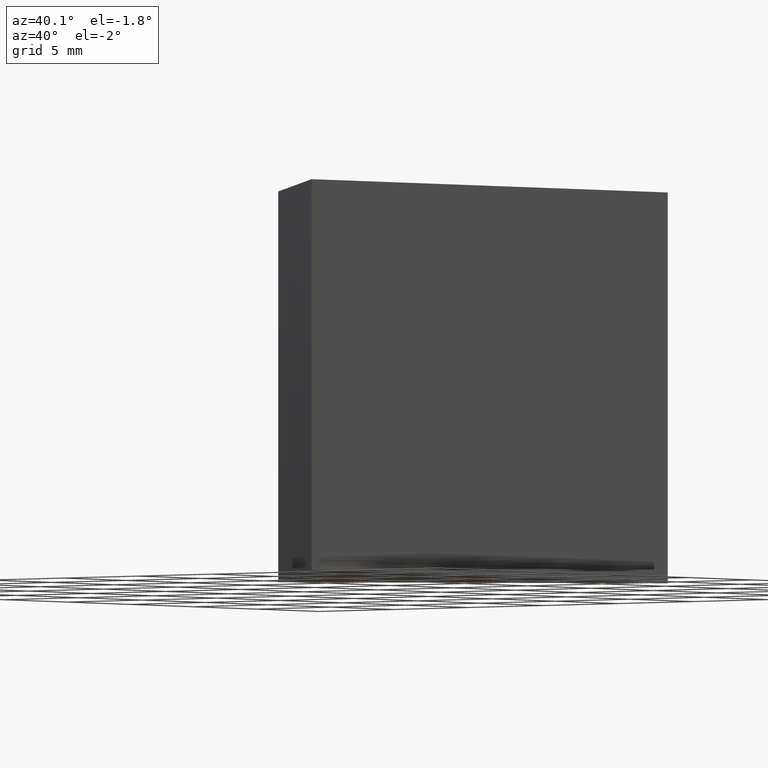
[diagram: clean part render]
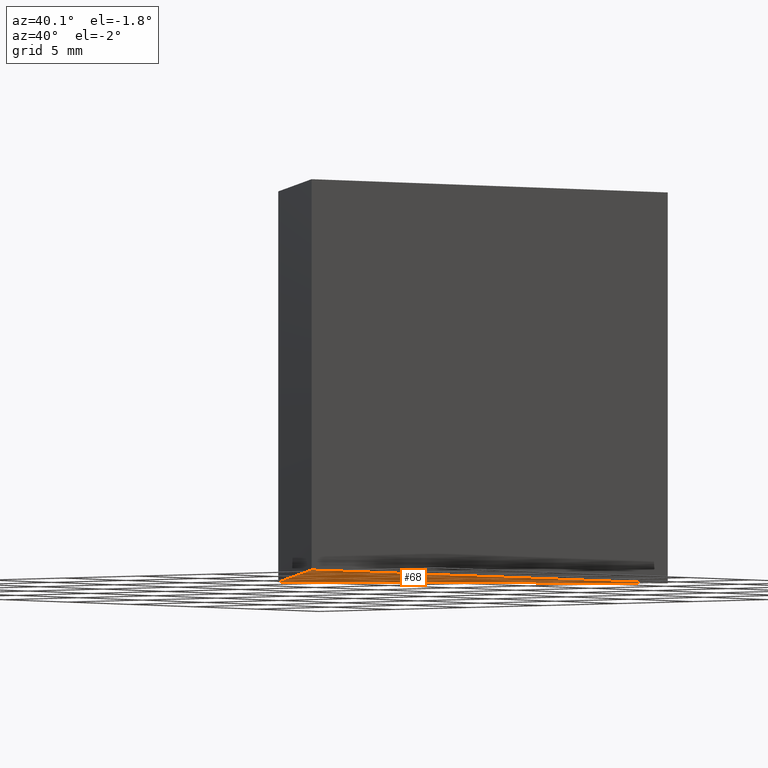
[diagram: same view with one face highlighted and labeled with its STEP entity id]
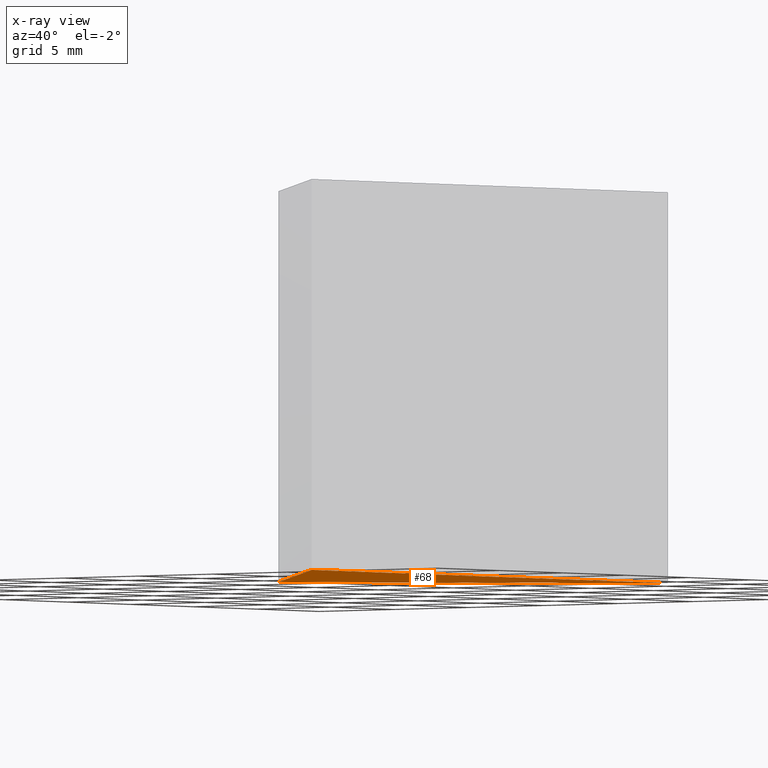
[diagram: x-ray of the same camera — body ghosted, the highlighted face saturated]
A machine part, auxiliary view. The second image highlights one B-rep face of the part: STEP entity #68.
The next image is the same camera in x-ray: the body ghosted, the highlighted face saturated — about 0% of this face is hidden behind the body in this view.
In plain terms, the highlighted planar face has unit normal (0, -0, 1).
Its self-contained STEP definition (entity closure, byte-faithful):
#2 = DIRECTION ( 'NONE',  ( 0.0000000000000000000, -0.0000000000000000000, 1.000000000000000000 ) ) ;
#18 = ORIENTED_EDGE ( 'NONE', *, *, #33, .F. ) ;
#22 = VECTOR ( 'NONE', #72, 999.9999999999998900 ) ;
#25 = CARTESIAN_POINT ( 'NONE',  ( 0.0000000000000000000, 0.0000000000000000000, 0.0000000000000000000 ) ) ;
#33 = EDGE_CURVE ( 'NONE', #57, #117, #153, .T. ) ;
#38 = LINE ( 'NONE', #119, #98 ) ;
#40 = PLANE ( 'NONE',  #169 ) ;
#41 = CARTESIAN_POINT ( 'NONE',  ( 196.7073461950922100, 60.06111063005870000, 0.0000000000000000000 ) ) ;
#47 = CARTESIAN_POINT ( 'NONE',  ( 182.5652105713612300, 45.91897500632775600, 0.0000000000000000000 ) ) ;
#56 = DIRECTION ( 'NONE',  ( 0.0000000000000000000, 1.000000000000000000, 0.0000000000000000000 ) ) ;
#57 = VERTEX_POINT ( 'NONE', #47 ) ;
#58 = FACE_OUTER_BOUND ( 'NONE', #114, .T. ) ;
#66 = DIRECTION ( 'NONE',  ( 1.000000000000000000, 0.0000000000000000000, -0.0000000000000000000 ) ) ;
#68 = ADVANCED_FACE ( 'NONE', ( #58 ), #40, .F. ) ;
#72 = DIRECTION ( 'NONE',  ( -0.7071067811865486800, -0.7071067811865464600, 0.0000000000000000000 ) ) ;
#76 = DIRECTION ( 'NONE',  ( 0.7071067811865483500, -0.7071067811865466800, 0.0000000000000000000 ) ) ;
#81 = CARTESIAN_POINT ( 'NONE',  ( 196.7073461950922100, 31.77683938259680800, 0.0000000000000000000 ) ) ;
#97 = CARTESIAN_POINT ( 'NONE',  ( 196.7073461950922100, 60.06111063005870000, 0.0000000000000000000 ) ) ;
#98 = VECTOR ( 'NONE', #56, 1000.000000000000000 ) ;
#107 = LINE ( 'NONE', #97, #22 ) ;
#114 = EDGE_LOOP ( 'NONE', ( #152, #18, #129 ) ) ;
#117 = VERTEX_POINT ( 'NONE', #81 ) ;
#119 = CARTESIAN_POINT ( 'NONE',  ( 196.7073461950922100, 31.77683938259680800, 0.0000000000000000000 ) ) ;
#129 = ORIENTED_EDGE ( 'NONE', *, *, #161, .F. ) ;
#140 = VECTOR ( 'NONE', #76, 1000.000000000000100 ) ;
#142 = EDGE_CURVE ( 'NONE', #117, #159, #38, .T. ) ;
#145 = CARTESIAN_POINT ( 'NONE',  ( 182.5652105713612300, 45.91897500632775600, 0.0000000000000000000 ) ) ;
#152 = ORIENTED_EDGE ( 'NONE', *, *, #142, .F. ) ;
#153 = LINE ( 'NONE', #145, #140 ) ;
#159 = VERTEX_POINT ( 'NONE', #41 ) ;
#161 = EDGE_CURVE ( 'NONE', #159, #57, #107, .T. ) ;
#169 = AXIS2_PLACEMENT_3D ( 'NONE', #25, #2, #66 ) ;